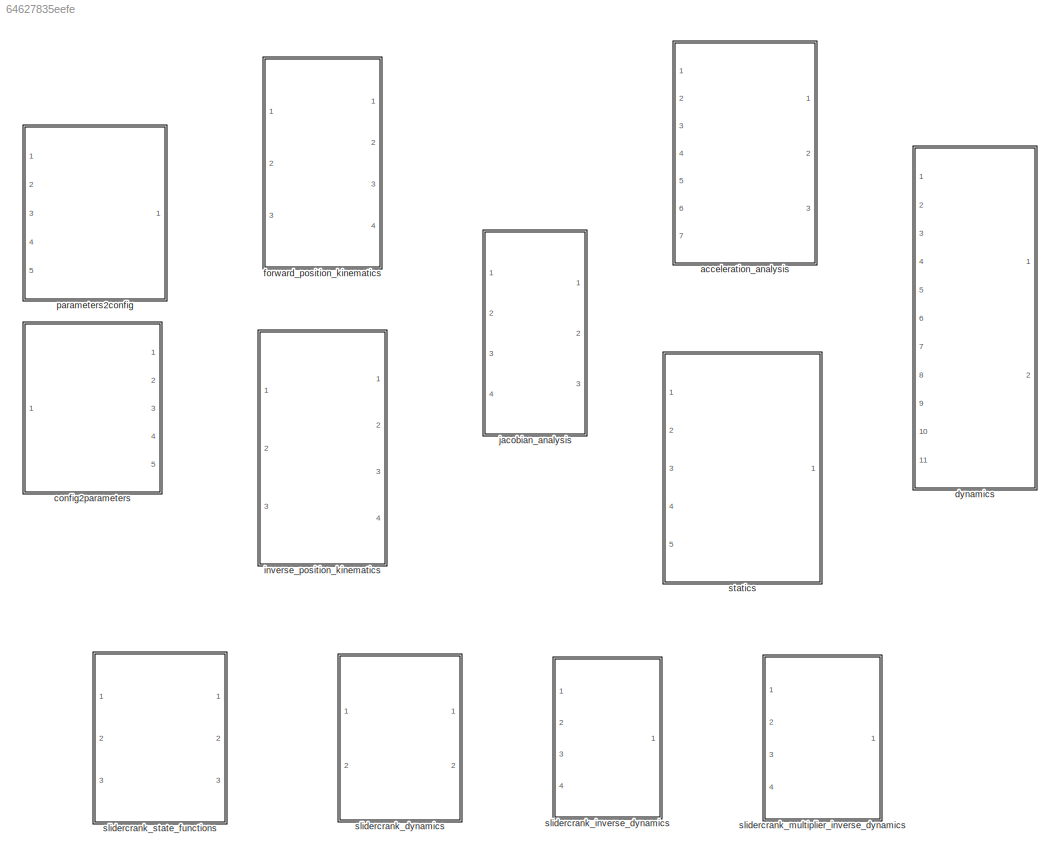
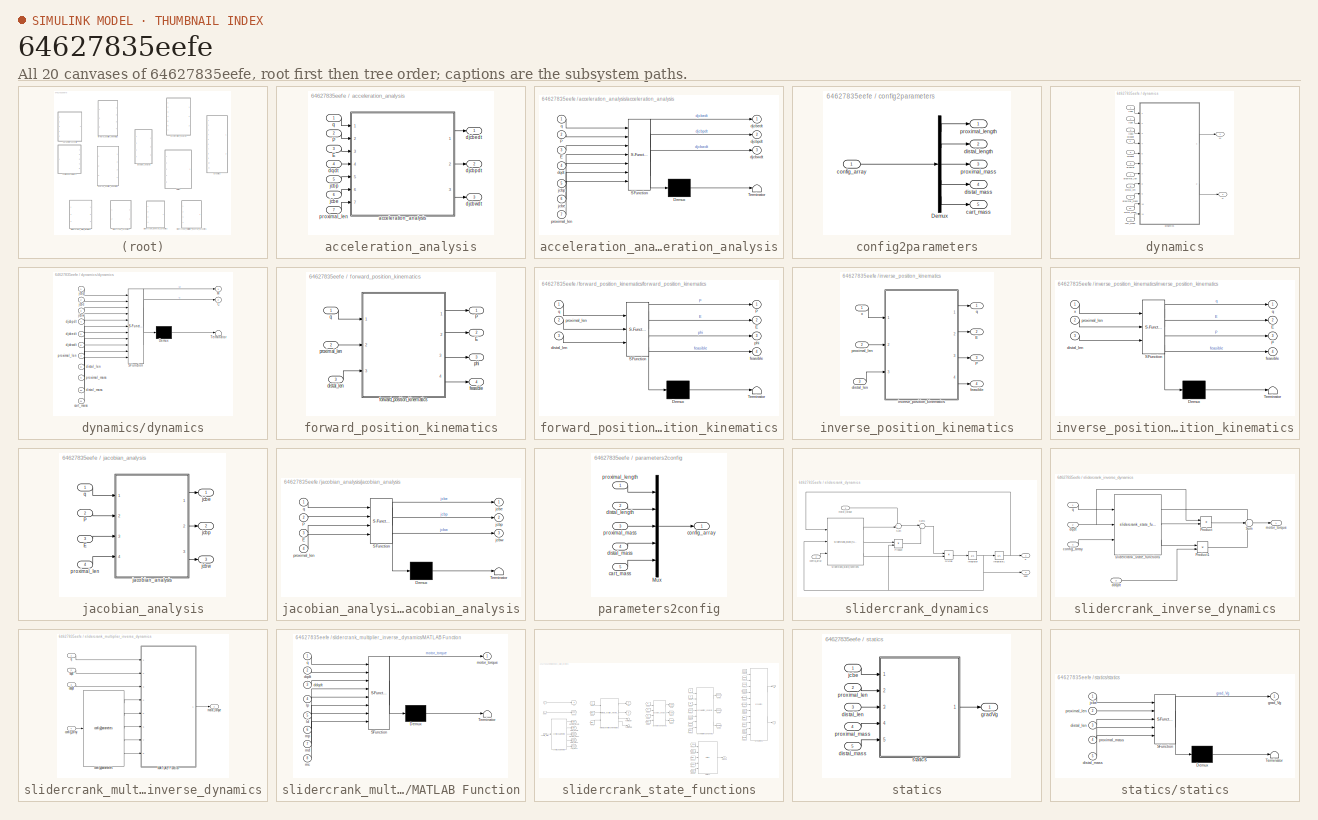
[diagram: thumbnail index - all 20 canvases of the model, root first then tree order]
MODEL slx_64627835eefe
KIND library
CONFIG AbsTol = auto
CONFIG EnableMultiTasking = off
CONFIG FixedStep = auto
CONFIG MaxStep = auto
CONFIG MinStep = auto
CONFIG RelTol = 1e-3
CONFIG SampleTimeConstraint = Unconstrained
CONFIG Solver = VariableStepAuto
CONFIG SolverName = VariableStepAuto
CONFIG StartTime = 0.0
CONFIG StopTime = 10.0
BLOCK [SubSystem] acceleration_analysis
  Ports = [7, 3]
  RequestExecContextInheritance = off
  Variant = off
BLOCK [Inport] acceleration_analysis/E
  IconDisplay = Port number
  Port = 3
BLOCK [Inport] acceleration_analysis/P
  IconDisplay = Port number
  Port = 2
BLOCK [SubSystem] acceleration_analysis/acceleration_analysis
  ErrorFcn = Stateflow.Translate.translate
  PermitHierarchicalResolution = ExplicitOnly
  Ports = [7, 3]
  RequestExecContextInheritance = off
  SFBlockType = MATLAB Function
  TreatAsAtomicUnit = on
  Variant = off
BLOCK [Demux] acceleration_analysis/acceleration_analysis/ Demux 
  Outputs = 1
  Ports = [1, 1]
BLOCK [S-Function] acceleration_analysis/acceleration_analysis/ SFunction 
  EnableBusSupport = off
  FunctionName = sf_sfun
  PortCounts = [7 4]
  Ports = [7, 4]
  SFcnIsStateOwnerBlock = off
  SFunctionDeploymentMode = off
  Tag = Stateflow S-Function slidercrank_basic_library_v1 5
BLOCK [Terminator] acceleration_analysis/acceleration_analysis/ Terminator 
BLOCK [Inport] acceleration_analysis/acceleration_analysis/E
  IconDisplay = Port number
  Port = 3
BLOCK [Inport] acceleration_analysis/acceleration_analysis/P
  IconDisplay = Port number
  Port = 2
BLOCK [Outport] acceleration_analysis/acceleration_analysis/djcbedt
  IconDisplay = Port number
BLOCK [Outport] acceleration_analysis/acceleration_analysis/djcbpdt
  IconDisplay = Port number
  Port = 2
BLOCK [Outport] acceleration_analysis/acceleration_analysis/djcbwdt
  IconDisplay = Port number
  Port = 3
BLOCK [Inport] acceleration_analysis/acceleration_analysis/dqdt
  IconDisplay = Port number
  Port = 4
BLOCK [Inport] acceleration_analysis/acceleration_analysis/jcbe
  IconDisplay = Port number
  Port = 6
BLOCK [Inport] acceleration_analysis/acceleration_analysis/jcbp
  IconDisplay = Port number
  Port = 5
BLOCK [Inport] acceleration_analysis/acceleration_analysis/proximal_len
  IconDisplay = Port number
  Port = 7
BLOCK [Inport] acceleration_analysis/acceleration_analysis/q
  IconDisplay = Port number
BLOCK [Outport] acceleration_analysis/djcbedt
  IconDisplay = Port number
BLOCK [Outport] acceleration_analysis/djcbpdt
  IconDisplay = Port number
  Port = 2
BLOCK [Outport] acceleration_analysis/djcbwdt
  IconDisplay = Port number
  Port = 3
BLOCK [Inport] acceleration_analysis/dqdt
  IconDisplay = Port number
  Port = 4
BLOCK [Inport] acceleration_analysis/jcbe
  IconDisplay = Port number
  Port = 6
BLOCK [Inport] acceleration_analysis/jcbp
  IconDisplay = Port number
  Port = 5
BLOCK [Inport] acceleration_analysis/proximal_len
  IconDisplay = Port number
  Port = 7
BLOCK [Inport] acceleration_analysis/q
  IconDisplay = Port number
BLOCK [SubSystem] config2parameters
  Ports = [1, 5]
  RequestExecContextInheritance = off
  Variant = off
BLOCK [Demux] config2parameters/Demux
  DisplayOption = bar
  Outputs = 5
  Ports = [1, 5]
BLOCK [Outport] config2parameters/cart_mass
  IconDisplay = Port number
  Port = 5
BLOCK [Inport] config2parameters/config_array
  IconDisplay = Port number
BLOCK [Outport] config2parameters/distal_length
  IconDisplay = Port number
  Port = 2
BLOCK [Outport] config2parameters/distal_mass
  IconDisplay = Port number
  Port = 4
BLOCK [Outport] config2parameters/proximal_length
  IconDisplay = Port number
BLOCK [Outport] config2parameters/proximal_mass
  IconDisplay = Port number
  Port = 3
BLOCK [SubSystem] dynamics
  Ports = [11, 2]
  RequestExecContextInheritance = off
  Variant = off
BLOCK [Outport] dynamics/C
  IconDisplay = Port number
  Port = 2
BLOCK [Outport] dynamics/M
  IconDisplay = Port number
BLOCK [Inport] dynamics/cart_mass
  IconDisplay = Port number
  Port = 11
BLOCK [Inport] dynamics/distal_len
  IconDisplay = Port number
  Port = 8
BLOCK [Inport] dynamics/distal_mass
  IconDisplay = Port number
  Port = 10
BLOCK [Inport] dynamics/djcbedt
  IconDisplay = Port number
  Port = 5
BLOCK [Inport] dynamics/djcbpdt
  IconDisplay = Port number
  Port = 4
BLOCK [Inport] dynamics/djcbwdt
  IconDisplay = Port number
  Port = 6
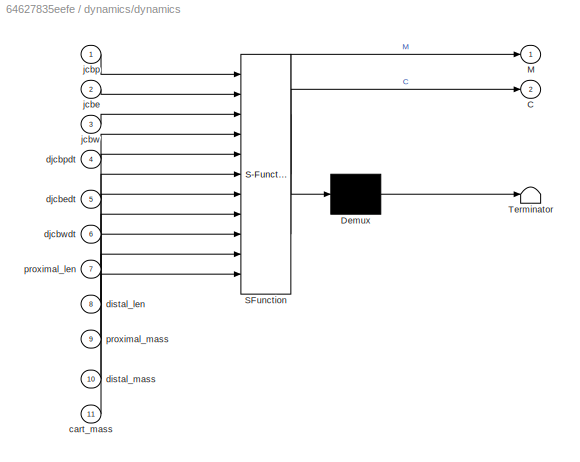
BLOCK [SubSystem] dynamics/dynamics
  ErrorFcn = Stateflow.Translate.translate
  PermitHierarchicalResolution = ExplicitOnly
  Ports = [11, 2]
  RequestExecContextInheritance = off
  SFBlockType = MATLAB Function
  TreatAsAtomicUnit = on
  Variant = off
BLOCK [Demux] dynamics/dynamics/ Demux 
  Outputs = 1
  Ports = [1, 1]
BLOCK [S-Function] dynamics/dynamics/ SFunction 
  EnableBusSupport = off
  FunctionName = sf_sfun
  PortCounts = [11 3]
  Ports = [11, 3]
  SFcnIsStateOwnerBlock = off
  SFunctionDeploymentMode = off
  Tag = Stateflow S-Function slidercrank_basic_library_v1 7
BLOCK [Terminator] dynamics/dynamics/ Terminator 
BLOCK [Outport] dynamics/dynamics/C
  IconDisplay = Port number
  Port = 2
BLOCK [Outport] dynamics/dynamics/M
  IconDisplay = Port number
BLOCK [Inport] dynamics/dynamics/cart_mass
  IconDisplay = Port number
  Port = 11
BLOCK [Inport] dynamics/dynamics/distal_len
  IconDisplay = Port number
  Port = 8
BLOCK [Inport] dynamics/dynamics/distal_mass
  IconDisplay = Port number
  Port = 10
BLOCK [Inport] dynamics/dynamics/djcbedt
  IconDisplay = Port number
  Port = 5
BLOCK [Inport] dynamics/dynamics/djcbpdt
  IconDisplay = Port number
  Port = 4
BLOCK [Inport] dynamics/dynamics/djcbwdt
  IconDisplay = Port number
  Port = 6
BLOCK [Inport] dynamics/dynamics/jcbe
  IconDisplay = Port number
  Port = 2
BLOCK [Inport] dynamics/dynamics/jcbp
  IconDisplay = Port number
BLOCK [Inport] dynamics/dynamics/jcbw
  IconDisplay = Port number
  Port = 3
BLOCK [Inport] dynamics/dynamics/proximal_len
  IconDisplay = Port number
  Port = 7
BLOCK [Inport] dynamics/dynamics/proximal_mass
  IconDisplay = Port number
  Port = 9
BLOCK [Inport] dynamics/jcbe
  IconDisplay = Port number
  Port = 2
BLOCK [Inport] dynamics/jcbp
  IconDisplay = Port number
BLOCK [Inport] dynamics/jcbw
  IconDisplay = Port number
  Port = 3
BLOCK [Inport] dynamics/proximal_len
  IconDisplay = Port number
  Port = 7
BLOCK [Inport] dynamics/proximal_mass
  IconDisplay = Port number
  Port = 9
BLOCK [SubSystem] forward_position_kinematics
  Ports = [3, 4]
  RequestExecContextInheritance = off
  Variant = off
BLOCK [Outport] forward_position_kinematics/E
  IconDisplay = Port number
  Port = 2
BLOCK [Outport] forward_position_kinematics/P
  IconDisplay = Port number
BLOCK [Inport] forward_position_kinematics/distal_len
  IconDisplay = Port number
  Port = 3
BLOCK [Outport] forward_position_kinematics/feasible
  IconDisplay = Port number
  Port = 4
BLOCK [SubSystem] forward_position_kinematics/forward_position_kinematics
  ErrorFcn = Stateflow.Translate.translate
  PermitHierarchicalResolution = ExplicitOnly
  Ports = [3, 4]
  RequestExecContextInheritance = off
  SFBlockType = MATLAB Function
  TreatAsAtomicUnit = on
  Variant = off
BLOCK [Demux] forward_position_kinematics/forward_position_kinematics/ Demux 
  Outputs = 1
  Ports = [1, 1]
BLOCK [S-Function] forward_position_kinematics/forward_position_kinematics/ SFunction 
  EnableBusSupport = off
  FunctionName = sf_sfun
  PortCounts = [3 5]
  Ports = [3, 5]
  SFcnIsStateOwnerBlock = off
  SFunctionDeploymentMode = off
  Tag = Stateflow S-Function slidercrank_basic_library_v1 12
BLOCK [Terminator] forward_position_kinematics/forward_position_kinematics/ Terminator 
BLOCK [Outport] forward_position_kinematics/forward_position_kinematics/E
  IconDisplay = Port number
  Port = 2
BLOCK [Outport] forward_position_kinematics/forward_position_kinematics/P
  IconDisplay = Port number
BLOCK [Inport] forward_position_kinematics/forward_position_kinematics/distal_len
  IconDisplay = Port number
  Port = 3
BLOCK [Outport] forward_position_kinematics/forward_position_kinematics/feasible
  IconDisplay = Port number
  Port = 4
BLOCK [Outport] forward_position_kinematics/forward_position_kinematics/phi
  IconDisplay = Port number
  Port = 3
BLOCK [Inport] forward_position_kinematics/forward_position_kinematics/proximal_len
  IconDisplay = Port number
  Port = 2
BLOCK [Inport] forward_position_kinematics/forward_position_kinematics/q
  IconDisplay = Port number
BLOCK [Outport] forward_position_kinematics/phi
  IconDisplay = Port number
  Port = 3
BLOCK [Inport] forward_position_kinematics/proximal_len
  IconDisplay = Port number
  Port = 2
BLOCK [Inport] forward_position_kinematics/q
  IconDisplay = Port number
BLOCK [SubSystem] inverse_position_kinematics
  Ports = [3, 4]
  RequestExecContextInheritance = off
  Variant = off
BLOCK [Outport] inverse_position_kinematics/E
  IconDisplay = Port number
  Port = 2
BLOCK [Outport] inverse_position_kinematics/P
  IconDisplay = Port number
  Port = 3
BLOCK [Inport] inverse_position_kinematics/distal_len
  IconDisplay = Port number
  Port = 3
BLOCK [Outport] inverse_position_kinematics/feasible
  IconDisplay = Port number
  Port = 4
BLOCK [SubSystem] inverse_position_kinematics/inverse_position_kinematics
  ErrorFcn = Stateflow.Translate.translate
  PermitHierarchicalResolution = ExplicitOnly
  Ports = [3, 4]
  RequestExecContextInheritance = off
  SFBlockType = MATLAB Function
  TreatAsAtomicUnit = on
  Variant = off
BLOCK [Demux] inverse_position_kinematics/inverse_position_kinematics/ Demux 
  Outputs = 1
  Ports = [1, 1]
BLOCK [S-Function] inverse_position_kinematics/inverse_position_kinematics/ SFunction 
  EnableBusSupport = off
  FunctionName = sf_sfun
  PortCounts = [3 5]
  Ports = [3, 5]
  SFcnIsStateOwnerBlock = off
  SFunctionDeploymentMode = off
  Tag = Stateflow S-Function slidercrank_basic_library_v1 1
BLOCK [Terminator] inverse_position_kinematics/inverse_position_kinematics/ Terminator 
BLOCK [Outport] inverse_position_kinematics/inverse_position_kinematics/E
  IconDisplay = Port number
  Port = 2
BLOCK [Outport] inverse_position_kinematics/inverse_position_kinematics/P
  IconDisplay = Port number
  Port = 3
BLOCK [Inport] inverse_position_kinematics/inverse_position_kinematics/distal_len
  IconDisplay = Port number
  Port = 3
BLOCK [Outport] inverse_position_kinematics/inverse_position_kinematics/feasible
  IconDisplay = Port number
  Port = 4
BLOCK [Inport] inverse_position_kinematics/inverse_position_kinematics/proximal_len
  IconDisplay = Port number
  Port = 2
BLOCK [Outport] inverse_position_kinematics/inverse_position_kinematics/q
  IconDisplay = Port number
BLOCK [Inport] inverse_position_kinematics/inverse_position_kinematics/x
  IconDisplay = Port number
BLOCK [Inport] inverse_position_kinematics/proximal_len
  IconDisplay = Port number
  Port = 2
BLOCK [Outport] inverse_position_kinematics/q
  IconDisplay = Port number
BLOCK [Inport] inverse_position_kinematics/x
  IconDisplay = Port number
BLOCK [SubSystem] jacobian_analysis
  Ports = [4, 3]
  RequestExecContextInheritance = off
  Variant = off
BLOCK [Inport] jacobian_analysis/E
  IconDisplay = Port number
  Port = 3
BLOCK [Inport] jacobian_analysis/P
  IconDisplay = Port number
  Port = 2
BLOCK [SubSystem] jacobian_analysis/jacobian_analysis
  ErrorFcn = Stateflow.Translate.translate
  PermitHierarchicalResolution = ExplicitOnly
  Ports = [4, 3]
  RequestExecContextInheritance = off
  SFBlockType = MATLAB Function
  TreatAsAtomicUnit = on
  Variant = off
BLOCK [Demux] jacobian_analysis/jacobian_analysis/ Demux 
  Outputs = 1
  Ports = [1, 1]
BLOCK [S-Function] jacobian_analysis/jacobian_analysis/ SFunction 
  EnableBusSupport = off
  FunctionName = sf_sfun
  PortCounts = [4 4]
  Ports = [4, 4]
  SFcnIsStateOwnerBlock = off
  SFunctionDeploymentMode = off
  Tag = Stateflow S-Function slidercrank_basic_library_v1 3
BLOCK [Terminator] jacobian_analysis/jacobian_analysis/ Terminator 
BLOCK [Inport] jacobian_analysis/jacobian_analysis/E
  IconDisplay = Port number
  Port = 3
BLOCK [Inport] jacobian_analysis/jacobian_analysis/P
  IconDisplay = Port number
  Port = 2
BLOCK [Outport] jacobian_analysis/jacobian_analysis/jcbe
  IconDisplay = Port number
BLOCK [Outport] jacobian_analysis/jacobian_analysis/jcbp
  IconDisplay = Port number
  Port = 2
BLOCK [Outport] jacobian_analysis/jacobian_analysis/jcbw
  IconDisplay = Port number
  Port = 3
BLOCK [Inport] jacobian_analysis/jacobian_analysis/proximal_len
  IconDisplay = Port number
  Port = 4
BLOCK [Inport] jacobian_analysis/jacobian_analysis/q
  IconDisplay = Port number
BLOCK [Outport] jacobian_analysis/jcbe
  IconDisplay = Port number
BLOCK [Outport] jacobian_analysis/jcbp
  IconDisplay = Port number
  Port = 2
BLOCK [Outport] jacobian_analysis/jcbw
  IconDisplay = Port number
  Port = 3
BLOCK [Inport] jacobian_analysis/proximal_len
  IconDisplay = Port number
  Port = 4
BLOCK [Inport] jacobian_analysis/q
  IconDisplay = Port number
BLOCK [SubSystem] parameters2config
  Ports = [5, 1]
  RequestExecContextInheritance = off
  Variant = off
BLOCK [Mux] parameters2config/Mux
  DisplayOption = bar
  Inputs = 5
  Ports = [5, 1]
BLOCK [Inport] parameters2config/cart_mass
  IconDisplay = Port number
  Port = 5
BLOCK [Outport] parameters2config/config_array
  IconDisplay = Port number
BLOCK [Inport] parameters2config/distal_length
  IconDisplay = Port number
  Port = 2
BLOCK [Inport] parameters2config/distal_mass
  IconDisplay = Port number
  Port = 4
BLOCK [Inport] parameters2config/proximal_length
  IconDisplay = Port number
BLOCK [Inport] parameters2config/proximal_mass
  IconDisplay = Port number
  Port = 3
BLOCK [SubSystem] slidercrank_dynamics
  Ports = [2, 2]
  RequestExecContextInheritance = off
  Variant = off
BLOCK [Product] slidercrank_dynamics/Divide
  InputSameDT = off
  Inputs = */
  OutDataTypeStr = Inherit: Inherit via internal rule
  Ports = [2, 1]
  RndMeth = Floor
  SaturateOnIntegerOverflow = off
BLOCK [Integrator] slidercrank_dynamics/Integrator
  Ports = [1, 1]
BLOCK [Integrator] slidercrank_dynamics/Integrator1
  Ports = [1, 1]
BLOCK [Product] slidercrank_dynamics/Product
  InputSameDT = off
  OutDataTypeStr = Inherit: Inherit via internal rule
  Ports = [2, 1]
  RndMeth = Floor
  SaturateOnIntegerOverflow = off
BLOCK [Sum] slidercrank_dynamics/Sum
  IconShape = round
  InputSameDT = off
  Inputs = ++|
  OutDataTypeStr = Inherit: Inherit via internal rule
  Ports = [2, 1]
  SaturateOnIntegerOverflow = off
BLOCK [Sum] slidercrank_dynamics/Sum1
  IconShape = round
  InputSameDT = off
  Inputs = |+-
  OutDataTypeStr = Inherit: Inherit via internal rule
  Ports = [2, 1]
  SaturateOnIntegerOverflow = off
BLOCK [Inport] slidercrank_dynamics/config_array
  IconDisplay = Port number
  Port = 2
BLOCK [Outport] slidercrank_dynamics/dqdt
  IconDisplay = Port number
  Port = 2
BLOCK [Inport] slidercrank_dynamics/motor_torque
  IconDisplay = Port number
BLOCK [Outport] slidercrank_dynamics/q
  IconDisplay = Port number
BLOCK [Reference] slidercrank_dynamics/slidercrank_state_functions  REF=slidercrank_basic_library_v1/slidercrank_state_functions  (lib defined in slx_64627835eefe)
  Ports = [3, 3]
  SourceBlock = slidercrank_basic_library_v1/slidercrank_state_functions
  SourceType = SubSystem
BLOCK [SubSystem] slidercrank_inverse_dynamics
  Ports = [4, 1]
  RequestExecContextInheritance = off
  Variant = off
BLOCK [Product] slidercrank_inverse_dynamics/Product
  InputSameDT = off
  OutDataTypeStr = Inherit: Inherit via internal rule
  Ports = [2, 1]
  RndMeth = Floor
  SaturateOnIntegerOverflow = off
BLOCK [Product] slidercrank_inverse_dynamics/Product1
  InputSameDT = off
  OutDataTypeStr = Inherit: Inherit via internal rule
  Ports = [2, 1]
  RndMeth = Floor
  SaturateOnIntegerOverflow = off
BLOCK [Sum] slidercrank_inverse_dynamics/Sum
  IconShape = round
  InputSameDT = off
  Inputs = -++
  OutDataTypeStr = Inherit: Inherit via internal rule
  Ports = [3, 1]
  SaturateOnIntegerOverflow = off
BLOCK [Inport] slidercrank_inverse_dynamics/config_array
  IconDisplay = Port number
  Port = 4
BLOCK [Inport] slidercrank_inverse_dynamics/ddqdt
  IconDisplay = Port number
  Port = 3
BLOCK [Inport] slidercrank_inverse_dynamics/dqdt
  IconDisplay = Port number
  Port = 2
BLOCK [Outport] slidercrank_inverse_dynamics/motor_torque
  IconDisplay = Port number
BLOCK [Inport] slidercrank_inverse_dynamics/q
  IconDisplay = Port number
BLOCK [Reference] slidercrank_inverse_dynamics/slidercrank_state_functions  REF=slidercrank_basic_library_v1/slidercrank_state_functions  (lib defined in slx_64627835eefe)
  Ports = [3, 3]
  SourceBlock = slidercrank_basic_library_v1/slidercrank_state_functions
  SourceType = SubSystem
BLOCK [SubSystem] slidercrank_multiplier_inverse_dynamics
  Ports = [4, 1]
  RequestExecContextInheritance = off
  Variant = off
BLOCK [SubSystem] slidercrank_multiplier_inverse_dynamics/MATLAB Function
  ErrorFcn = Stateflow.Translate.translate
  PermitHierarchicalResolution = ExplicitOnly
  Ports = [8, 1]
  RequestExecContextInheritance = off
  SFBlockType = MATLAB Function
  TreatAsAtomicUnit = on
  Variant = off
BLOCK [Demux] slidercrank_multiplier_inverse_dynamics/MATLAB Function/ Demux 
  Outputs = 1
  Ports = [1, 1]
BLOCK [S-Function] slidercrank_multiplier_inverse_dynamics/MATLAB Function/ SFunction 
  EnableBusSupport = off
  FunctionName = sf_sfun
  PortCounts = [8 2]
  Ports = [8, 2]
  SFcnIsStateOwnerBlock = off
  SFunctionDeploymentMode = off
  Tag = Stateflow S-Function slidercrank_basic_library_v1 2
BLOCK [Terminator] slidercrank_multiplier_inverse_dynamics/MATLAB Function/ Terminator 
BLOCK [Inport] slidercrank_multiplier_inverse_dynamics/MATLAB Function/ddqdt
  IconDisplay = Port number
  Port = 3
BLOCK [Inport] slidercrank_multiplier_inverse_dynamics/MATLAB Function/dqdt
  IconDisplay = Port number
  Port = 2
BLOCK [Inport] slidercrank_multiplier_inverse_dynamics/MATLAB Function/ld
  IconDisplay = Port number
  Port = 5
BLOCK [Inport] slidercrank_multiplier_inverse_dynamics/MATLAB Function/lp
  IconDisplay = Port number
  Port = 4
BLOCK [Inport] slidercrank_multiplier_inverse_dynamics/MATLAB Function/mc
  IconDisplay = Port number
  Port = 8
BLOCK [Inport] slidercrank_multiplier_inverse_dynamics/MATLAB Function/md
  IconDisplay = Port number
  Port = 7
BLOCK [Outport] slidercrank_multiplier_inverse_dynamics/MATLAB Function/motor_torque
  IconDisplay = Port number
BLOCK [Inport] slidercrank_multiplier_inverse_dynamics/MATLAB Function/mp
  IconDisplay = Port number
  Port = 6
BLOCK [Inport] slidercrank_multiplier_inverse_dynamics/MATLAB Function/q
  IconDisplay = Port number
BLOCK [Reference] slidercrank_multiplier_inverse_dynamics/config2parameters  REF=slidercrank_basic_library_v1/config2parameters  (lib defined in slx_64627835eefe)
  Ports = [1, 5]
  SourceBlock = slidercrank_basic_library_v1/config2parameters
  SourceType = SubSystem
BLOCK [Inport] slidercrank_multiplier_inverse_dynamics/config_array
  IconDisplay = Port number
  Port = 4
BLOCK [Inport] slidercrank_multiplier_inverse_dynamics/ddqdt
  IconDisplay = Port number
  Port = 3
BLOCK [Inport] slidercrank_multiplier_inverse_dynamics/dqdt
  IconDisplay = Port number
  Port = 2
BLOCK [Outport] slidercrank_multiplier_inverse_dynamics/motor_torque
  IconDisplay = Port number
BLOCK [Inport] slidercrank_multiplier_inverse_dynamics/q
  IconDisplay = Port number
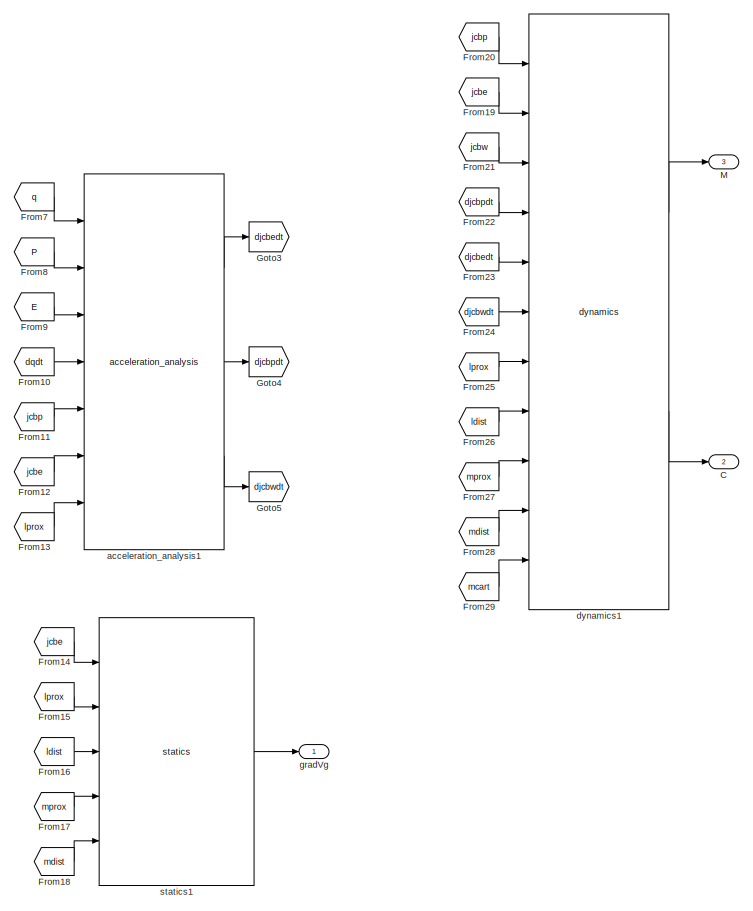
[diagram: slidercrank_state_functions - part 1/2, right side, full height]
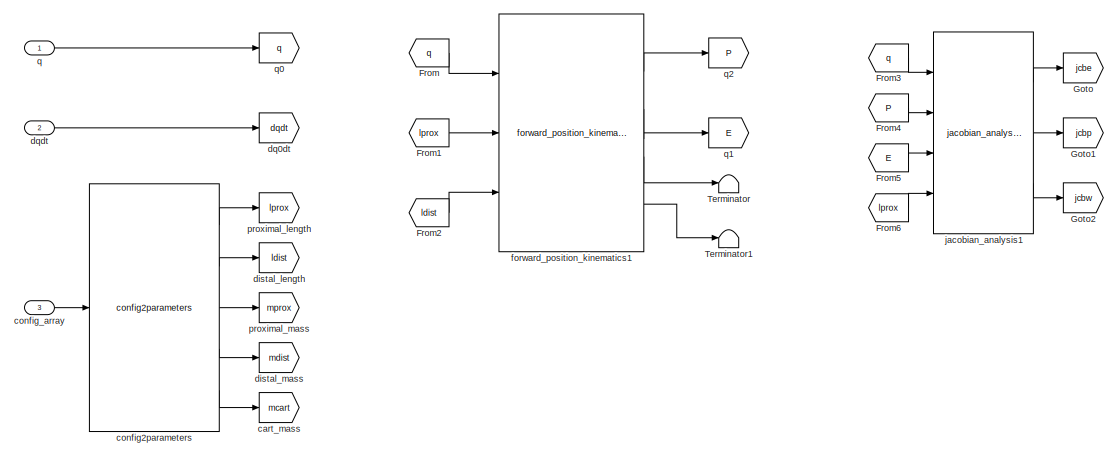
[diagram: slidercrank_state_functions - part 2/2, middle left region]
BLOCK [SubSystem] slidercrank_state_functions
  Ports = [3, 3]
  RequestExecContextInheritance = off
  Variant = off
BLOCK [Outport] slidercrank_state_functions/C
  IconDisplay = Port number
  Port = 2
BLOCK [From] slidercrank_state_functions/From
  GotoTag = q
BLOCK [From] slidercrank_state_functions/From1
  GotoTag = lprox
BLOCK [From] slidercrank_state_functions/From10
  GotoTag = dqdt
BLOCK [From] slidercrank_state_functions/From11
  GotoTag = jcbp
BLOCK [From] slidercrank_state_functions/From12
  GotoTag = jcbe
BLOCK [From] slidercrank_state_functions/From13
  GotoTag = lprox
BLOCK [From] slidercrank_state_functions/From14
  GotoTag = jcbe
BLOCK [From] slidercrank_state_functions/From15
  GotoTag = lprox
BLOCK [From] slidercrank_state_functions/From16
  GotoTag = ldist
BLOCK [From] slidercrank_state_functions/From17
  GotoTag = mprox
BLOCK [From] slidercrank_state_functions/From18
  GotoTag = mdist
BLOCK [From] slidercrank_state_functions/From19
  GotoTag = jcbe
BLOCK [From] slidercrank_state_functions/From2
  GotoTag = ldist
BLOCK [From] slidercrank_state_functions/From20
  GotoTag = jcbp
BLOCK [From] slidercrank_state_functions/From21
  GotoTag = jcbw
BLOCK [From] slidercrank_state_functions/From22
  GotoTag = djcbpdt
BLOCK [From] slidercrank_state_functions/From23
  GotoTag = djcbedt
BLOCK [From] slidercrank_state_functions/From24
  GotoTag = djcbwdt
BLOCK [From] slidercrank_state_functions/From25
  GotoTag = lprox
BLOCK [From] slidercrank_state_functions/From26
  GotoTag = ldist
BLOCK [From] slidercrank_state_functions/From27
  GotoTag = mprox
BLOCK [From] slidercrank_state_functions/From28
  GotoTag = mdist
BLOCK [From] slidercrank_state_functions/From29
  GotoTag = mcart
BLOCK [From] slidercrank_state_functions/From3
  GotoTag = q
BLOCK [From] slidercrank_state_functions/From4
  GotoTag = P
BLOCK [From] slidercrank_state_functions/From5
  GotoTag = E
BLOCK [From] slidercrank_state_functions/From6
  GotoTag = lprox
BLOCK [From] slidercrank_state_functions/From7
  GotoTag = q
BLOCK [From] slidercrank_state_functions/From8
  GotoTag = P
BLOCK [From] slidercrank_state_functions/From9
  GotoTag = E
BLOCK [Goto] slidercrank_state_functions/Goto
  GotoTag = jcbe
BLOCK [Goto] slidercrank_state_functions/Goto1
  GotoTag = jcbp
BLOCK [Goto] slidercrank_state_functions/Goto2
  GotoTag = jcbw
BLOCK [Goto] slidercrank_state_functions/Goto3
  GotoTag = djcbedt
BLOCK [Goto] slidercrank_state_functions/Goto4
  GotoTag = djcbpdt
BLOCK [Goto] slidercrank_state_functions/Goto5
  GotoTag = djcbwdt
BLOCK [Outport] slidercrank_state_functions/M
  IconDisplay = Port number
  Port = 3
BLOCK [Terminator] slidercrank_state_functions/Terminator
BLOCK [Terminator] slidercrank_state_functions/Terminator1
BLOCK [Reference] slidercrank_state_functions/acceleration_analysis1  REF=slidercrank_basic_library_v1/acceleration_analysis  (lib defined in slx_64627835eefe)
  Ports = [7, 3]
  SourceBlock = slidercrank_basic_library_v1/acceleration_analysis
  SourceType = SubSystem
BLOCK [Goto] slidercrank_state_functions/cart_mass
  GotoTag = mcart
BLOCK [Reference] slidercrank_state_functions/config2parameters  REF=slidercrank_basic_library_v1/config2parameters  (lib defined in slx_64627835eefe)
  Ports = [1, 5]
  SourceBlock = slidercrank_basic_library_v1/config2parameters
  SourceType = SubSystem
BLOCK [Inport] slidercrank_state_functions/config_array
  IconDisplay = Port number
  Port = 3
BLOCK [Goto] slidercrank_state_functions/distal_length
  GotoTag = ldist
BLOCK [Goto] slidercrank_state_functions/distal_mass
  GotoTag = mdist
BLOCK [Goto] slidercrank_state_functions/dq0dt
  GotoTag = dqdt
BLOCK [Inport] slidercrank_state_functions/dqdt
  IconDisplay = Port number
  Port = 2
BLOCK [Reference] slidercrank_state_functions/dynamics1  REF=slidercrank_basic_library_v1/dynamics  (lib defined in slx_64627835eefe)
  Ports = [11, 2]
  SourceBlock = slidercrank_basic_library_v1/dynamics
  SourceType = SubSystem
BLOCK [Reference] slidercrank_state_functions/forward_position_kinematics1  REF=slidercrank_basic_library_v1/forward_position_kinematics  (lib defined in slx_64627835eefe)
  Ports = [3, 4]
  SourceBlock = slidercrank_basic_library_v1/forward_position_kinematics
  SourceType = SubSystem
BLOCK [Outport] slidercrank_state_functions/gradVg
  IconDisplay = Port number
BLOCK [Reference] slidercrank_state_functions/jacobian_analysis1  REF=slidercrank_basic_library_v1/jacobian_analysis  (lib defined in slx_64627835eefe)
  Ports = [4, 3]
  SourceBlock = slidercrank_basic_library_v1/jacobian_analysis
  SourceType = SubSystem
BLOCK [Goto] slidercrank_state_functions/proximal_length
  GotoTag = lprox
BLOCK [Goto] slidercrank_state_functions/proximal_mass
  GotoTag = mprox
BLOCK [Inport] slidercrank_state_functions/q
  IconDisplay = Port number
BLOCK [Goto] slidercrank_state_functions/q0
  GotoTag = q
BLOCK [Goto] slidercrank_state_functions/q1
  GotoTag = E
BLOCK [Goto] slidercrank_state_functions/q2
  GotoTag = P
BLOCK [Reference] slidercrank_state_functions/statics1  REF=slidercrank_basic_library_v1/statics  (lib defined in slx_64627835eefe)
  Ports = [5, 1]
  SourceBlock = slidercrank_basic_library_v1/statics
  SourceType = SubSystem
BLOCK [SubSystem] statics
  Ports = [5, 1]
  RequestExecContextInheritance = off
  Variant = off
BLOCK [Inport] statics/distal_len
  IconDisplay = Port number
  Port = 3
BLOCK [Inport] statics/distal_mass
  IconDisplay = Port number
  Port = 5
BLOCK [Outport] statics/gradVg
  IconDisplay = Port number
BLOCK [Inport] statics/jcbe
  IconDisplay = Port number
BLOCK [Inport] statics/proximal_len
  IconDisplay = Port number
  Port = 2
BLOCK [Inport] statics/proximal_mass
  IconDisplay = Port number
  Port = 4
BLOCK [SubSystem] statics/statics
  ErrorFcn = Stateflow.Translate.translate
  PermitHierarchicalResolution = ExplicitOnly
  Ports = [5, 1]
  RequestExecContextInheritance = off
  SFBlockType = MATLAB Function
  TreatAsAtomicUnit = on
  Variant = off
BLOCK [Demux] statics/statics/ Demux 
  Outputs = 1
  Ports = [1, 1]
BLOCK [S-Function] statics/statics/ SFunction 
  EnableBusSupport = off
  FunctionName = sf_sfun
  PortCounts = [5 2]
  Ports = [5, 2]
  SFcnIsStateOwnerBlock = off
  SFunctionDeploymentMode = off
  Tag = Stateflow S-Function slidercrank_basic_library_v1 6
BLOCK [Terminator] statics/statics/ Terminator 
BLOCK [Inport] statics/statics/distal_len
  IconDisplay = Port number
  Port = 3
BLOCK [Inport] statics/statics/distal_mass
  IconDisplay = Port number
  Port = 5
BLOCK [Outport] statics/statics/grad_Vg
  IconDisplay = Port number
BLOCK [Inport] statics/statics/jcbe
  IconDisplay = Port number
BLOCK [Inport] statics/statics/proximal_len
  IconDisplay = Port number
  Port = 2
BLOCK [Inport] statics/statics/proximal_mass
  IconDisplay = Port number
  Port = 4
LINE acceleration_analysis/E:1 -> acceleration_analysis/acceleration_analysis:3
LINE acceleration_analysis/P:1 -> acceleration_analysis/acceleration_analysis:2
LINE acceleration_analysis/acceleration_analysis:1 -> acceleration_analysis/djcbedt:1
LINE acceleration_analysis/acceleration_analysis:2 -> acceleration_analysis/djcbpdt:1
LINE acceleration_analysis/acceleration_analysis:3 -> acceleration_analysis/djcbwdt:1
LINE acceleration_analysis/dqdt:1 -> acceleration_analysis/acceleration_analysis:4
LINE acceleration_analysis/jcbe:1 -> acceleration_analysis/acceleration_analysis:6
LINE acceleration_analysis/jcbp:1 -> acceleration_analysis/acceleration_analysis:5
LINE acceleration_analysis/proximal_len:1 -> acceleration_analysis/acceleration_analysis:7
LINE acceleration_analysis/q:1 -> acceleration_analysis/acceleration_analysis:1
LINE config2parameters/Demux:1 -> config2parameters/proximal_length:1
LINE config2parameters/Demux:2 -> config2parameters/distal_length:1
LINE config2parameters/Demux:3 -> config2parameters/proximal_mass:1
LINE config2parameters/Demux:4 -> config2parameters/distal_mass:1
LINE config2parameters/Demux:5 -> config2parameters/cart_mass:1
LINE config2parameters/config_array:1 -> config2parameters/Demux:1
LINE dynamics/cart_mass:1 -> dynamics/dynamics:11
LINE dynamics/distal_len:1 -> dynamics/dynamics:8
LINE dynamics/distal_mass:1 -> dynamics/dynamics:10
LINE dynamics/djcbedt:1 -> dynamics/dynamics:5
LINE dynamics/djcbpdt:1 -> dynamics/dynamics:4
LINE dynamics/djcbwdt:1 -> dynamics/dynamics:6
LINE dynamics/dynamics:1 -> dynamics/M:1
LINE dynamics/dynamics:2 -> dynamics/C:1
LINE dynamics/jcbe:1 -> dynamics/dynamics:2
LINE dynamics/jcbp:1 -> dynamics/dynamics:1
LINE dynamics/jcbw:1 -> dynamics/dynamics:3
LINE dynamics/proximal_len:1 -> dynamics/dynamics:7
LINE dynamics/proximal_mass:1 -> dynamics/dynamics:9
LINE forward_position_kinematics/distal_len:1 -> forward_position_kinematics/forward_position_kinematics:3
LINE forward_position_kinematics/forward_position_kinematics:1 -> forward_position_kinematics/P:1
LINE forward_position_kinematics/forward_position_kinematics:2 -> forward_position_kinematics/E:1
LINE forward_position_kinematics/forward_position_kinematics:3 -> forward_position_kinematics/phi:1
LINE forward_position_kinematics/forward_position_kinematics:4 -> forward_position_kinematics/feasible:1
LINE forward_position_kinematics/proximal_len:1 -> forward_position_kinematics/forward_position_kinematics:2
LINE forward_position_kinematics/q:1 -> forward_position_kinematics/forward_position_kinematics:1
LINE inverse_position_kinematics/distal_len:1 -> inverse_position_kinematics/inverse_position_kinematics:3
LINE inverse_position_kinematics/inverse_position_kinematics:1 -> inverse_position_kinematics/q:1
LINE inverse_position_kinematics/inverse_position_kinematics:2 -> inverse_position_kinematics/E:1
LINE inverse_position_kinematics/inverse_position_kinematics:3 -> inverse_position_kinematics/P:1
LINE inverse_position_kinematics/inverse_position_kinematics:4 -> inverse_position_kinematics/feasible:1
LINE inverse_position_kinematics/proximal_len:1 -> inverse_position_kinematics/inverse_position_kinematics:2
LINE inverse_position_kinematics/x:1 -> inverse_position_kinematics/inverse_position_kinematics:1
LINE jacobian_analysis/E:1 -> jacobian_analysis/jacobian_analysis:3
LINE jacobian_analysis/P:1 -> jacobian_analysis/jacobian_analysis:2
LINE jacobian_analysis/jacobian_analysis:1 -> jacobian_analysis/jcbe:1
LINE jacobian_analysis/jacobian_analysis:2 -> jacobian_analysis/jcbp:1
LINE jacobian_analysis/jacobian_analysis:3 -> jacobian_analysis/jcbw:1
LINE jacobian_analysis/proximal_len:1 -> jacobian_analysis/jacobian_analysis:4
LINE jacobian_analysis/q:1 -> jacobian_analysis/jacobian_analysis:1
LINE parameters2config/Mux:1 -> parameters2config/config_array:1
LINE parameters2config/cart_mass:1 -> parameters2config/Mux:5
LINE parameters2config/distal_length:1 -> parameters2config/Mux:2
LINE parameters2config/distal_mass:1 -> parameters2config/Mux:4
LINE parameters2config/proximal_length:1 -> parameters2config/Mux:1
LINE parameters2config/proximal_mass:1 -> parameters2config/Mux:3
LINE slidercrank_dynamics/Divide:1 -> slidercrank_dynamics/Integrator:1
NET slidercrank_dynamics/Integrator1:1 -> slidercrank_dynamics/q:1, slidercrank_dynamics/slidercrank_state_functions:1
NET slidercrank_dynamics/Integrator:1 -> slidercrank_dynamics/Integrator1:1, slidercrank_dynamics/Product:2, slidercrank_dynamics/dqdt:1, slidercrank_dynamics/slidercrank_state_functions:2
LINE slidercrank_dynamics/Product:1 -> slidercrank_dynamics/Sum1:2
LINE slidercrank_dynamics/Sum1:1 -> slidercrank_dynamics/Divide:1
LINE slidercrank_dynamics/Sum:1 -> slidercrank_dynamics/Sum1:1
LINE slidercrank_dynamics/config_array:1 -> slidercrank_dynamics/slidercrank_state_functions:3
LINE slidercrank_dynamics/motor_torque:1 -> slidercrank_dynamics/Sum:1
LINE slidercrank_dynamics/slidercrank_state_functions:1 -> slidercrank_dynamics/Sum:2
LINE slidercrank_dynamics/slidercrank_state_functions:2 -> slidercrank_dynamics/Product:1
LINE slidercrank_dynamics/slidercrank_state_functions:3 -> slidercrank_dynamics/Divide:2
LINE slidercrank_inverse_dynamics/Product1:1 -> slidercrank_inverse_dynamics/Sum:3
LINE slidercrank_inverse_dynamics/Product:1 -> slidercrank_inverse_dynamics/Sum:2
LINE slidercrank_inverse_dynamics/Sum:1 -> slidercrank_inverse_dynamics/motor_torque:1
LINE slidercrank_inverse_dynamics/config_array:1 -> slidercrank_inverse_dynamics/slidercrank_state_functions:3
LINE slidercrank_inverse_dynamics/ddqdt:1 -> slidercrank_inverse_dynamics/Product1:2
NET slidercrank_inverse_dynamics/dqdt:1 -> slidercrank_inverse_dynamics/Product:1, slidercrank_inverse_dynamics/slidercrank_state_functions:2
LINE slidercrank_inverse_dynamics/q:1 -> slidercrank_inverse_dynamics/slidercrank_state_functions:1
LINE slidercrank_inverse_dynamics/slidercrank_state_functions:1 -> slidercrank_inverse_dynamics/Sum:1
LINE slidercrank_inverse_dynamics/slidercrank_state_functions:2 -> slidercrank_inverse_dynamics/Product:2
LINE slidercrank_inverse_dynamics/slidercrank_state_functions:3 -> slidercrank_inverse_dynamics/Product1:1
LINE slidercrank_multiplier_inverse_dynamics/MATLAB Function:1 -> slidercrank_multiplier_inverse_dynamics/motor_torque:1
LINE slidercrank_multiplier_inverse_dynamics/config2parameters:1 -> slidercrank_multiplier_inverse_dynamics/MATLAB Function:4
LINE slidercrank_multiplier_inverse_dynamics/config2parameters:2 -> slidercrank_multiplier_inverse_dynamics/MATLAB Function:5
LINE slidercrank_multiplier_inverse_dynamics/config2parameters:3 -> slidercrank_multiplier_inverse_dynamics/MATLAB Function:6
LINE slidercrank_multiplier_inverse_dynamics/config2parameters:4 -> slidercrank_multiplier_inverse_dynamics/MATLAB Function:7
LINE slidercrank_multiplier_inverse_dynamics/config2parameters:5 -> slidercrank_multiplier_inverse_dynamics/MATLAB Function:8
LINE slidercrank_multiplier_inverse_dynamics/config_array:1 -> slidercrank_multiplier_inverse_dynamics/config2parameters:1
LINE slidercrank_multiplier_inverse_dynamics/ddqdt:1 -> slidercrank_multiplier_inverse_dynamics/MATLAB Function:3
LINE slidercrank_multiplier_inverse_dynamics/dqdt:1 -> slidercrank_multiplier_inverse_dynamics/MATLAB Function:2
LINE slidercrank_multiplier_inverse_dynamics/q:1 -> slidercrank_multiplier_inverse_dynamics/MATLAB Function:1
LINE slidercrank_state_functions/From10:1 -> slidercrank_state_functions/acceleration_analysis1:4
LINE slidercrank_state_functions/From11:1 -> slidercrank_state_functions/acceleration_analysis1:5
LINE slidercrank_state_functions/From12:1 -> slidercrank_state_functions/acceleration_analysis1:6
LINE slidercrank_state_functions/From13:1 -> slidercrank_state_functions/acceleration_analysis1:7
LINE slidercrank_state_functions/From14:1 -> slidercrank_state_functions/statics1:1
LINE slidercrank_state_functions/From15:1 -> slidercrank_state_functions/statics1:2
LINE slidercrank_state_functions/From16:1 -> slidercrank_state_functions/statics1:3
LINE slidercrank_state_functions/From17:1 -> slidercrank_state_functions/statics1:4
LINE slidercrank_state_functions/From18:1 -> slidercrank_state_functions/statics1:5
LINE slidercrank_state_functions/From19:1 -> slidercrank_state_functions/dynamics1:2
LINE slidercrank_state_functions/From1:1 -> slidercrank_state_functions/forward_position_kinematics1:2
LINE slidercrank_state_functions/From20:1 -> slidercrank_state_functions/dynamics1:1
LINE slidercrank_state_functions/From21:1 -> slidercrank_state_functions/dynamics1:3
LINE slidercrank_state_functions/From22:1 -> slidercrank_state_functions/dynamics1:4
LINE slidercrank_state_functions/From23:1 -> slidercrank_state_functions/dynamics1:5
LINE slidercrank_state_functions/From24:1 -> slidercrank_state_functions/dynamics1:6
LINE slidercrank_state_functions/From25:1 -> slidercrank_state_functions/dynamics1:7
LINE slidercrank_state_functions/From26:1 -> slidercrank_state_functions/dynamics1:8
LINE slidercrank_state_functions/From27:1 -> slidercrank_state_functions/dynamics1:9
LINE slidercrank_state_functions/From28:1 -> slidercrank_state_functions/dynamics1:10
LINE slidercrank_state_functions/From29:1 -> slidercrank_state_functions/dynamics1:11
LINE slidercrank_state_functions/From2:1 -> slidercrank_state_functions/forward_position_kinematics1:3
LINE slidercrank_state_functions/From3:1 -> slidercrank_state_functions/jacobian_analysis1:1
LINE slidercrank_state_functions/From4:1 -> slidercrank_state_functions/jacobian_analysis1:2
LINE slidercrank_state_functions/From5:1 -> slidercrank_state_functions/jacobian_analysis1:3
LINE slidercrank_state_functions/From6:1 -> slidercrank_state_functions/jacobian_analysis1:4
LINE slidercrank_state_functions/From7:1 -> slidercrank_state_functions/acceleration_analysis1:1
LINE slidercrank_state_functions/From8:1 -> slidercrank_state_functions/acceleration_analysis1:2
LINE slidercrank_state_functions/From9:1 -> slidercrank_state_functions/acceleration_analysis1:3
LINE slidercrank_state_functions/From:1 -> slidercrank_state_functions/forward_position_kinematics1:1
LINE slidercrank_state_functions/acceleration_analysis1:1 -> slidercrank_state_functions/Goto3:1
LINE slidercrank_state_functions/acceleration_analysis1:2 -> slidercrank_state_functions/Goto4:1
LINE slidercrank_state_functions/acceleration_analysis1:3 -> slidercrank_state_functions/Goto5:1
LINE slidercrank_state_functions/config2parameters:1 -> slidercrank_state_functions/proximal_length:1
LINE slidercrank_state_functions/config2parameters:2 -> slidercrank_state_functions/distal_length:1
LINE slidercrank_state_functions/config2parameters:3 -> slidercrank_state_functions/proximal_mass:1
LINE slidercrank_state_functions/config2parameters:4 -> slidercrank_state_functions/distal_mass:1
LINE slidercrank_state_functions/config2parameters:5 -> slidercrank_state_functions/cart_mass:1
LINE slidercrank_state_functions/config_array:1 -> slidercrank_state_functions/config2parameters:1
LINE slidercrank_state_functions/dqdt:1 -> slidercrank_state_functions/dq0dt:1
LINE slidercrank_state_functions/dynamics1:1 -> slidercrank_state_functions/M:1
LINE slidercrank_state_functions/dynamics1:2 -> slidercrank_state_functions/C:1
LINE slidercrank_state_functions/forward_position_kinematics1:1 -> slidercrank_state_functions/q2:1
LINE slidercrank_state_functions/forward_position_kinematics1:2 -> slidercrank_state_functions/q1:1
LINE slidercrank_state_functions/forward_position_kinematics1:3 -> slidercrank_state_functions/Terminator:1
LINE slidercrank_state_functions/forward_position_kinematics1:4 -> slidercrank_state_functions/Terminator1:1
LINE slidercrank_state_functions/jacobian_analysis1:1 -> slidercrank_state_functions/Goto:1
LINE slidercrank_state_functions/jacobian_analysis1:2 -> slidercrank_state_functions/Goto1:1
LINE slidercrank_state_functions/jacobian_analysis1:3 -> slidercrank_state_functions/Goto2:1
LINE slidercrank_state_functions/q:1 -> slidercrank_state_functions/q0:1
LINE slidercrank_state_functions/statics1:1 -> slidercrank_state_functions/gradVg:1
LINE statics/distal_len:1 -> statics/statics:3
LINE statics/distal_mass:1 -> statics/statics:5
LINE statics/jcbe:1 -> statics/statics:1
LINE statics/proximal_len:1 -> statics/statics:2
LINE statics/proximal_mass:1 -> statics/statics:4
LINE statics/statics:1 -> statics/gradVg:1
note: NET lines group one-source signal fan-out (src -> all destinations, sorted); 1:1 wires keep LINE
CHART inverse_position_kinematics/inverse_position_kinematics states=1 transitions=1
  STATE_LABEL 'eML_blk_kernel()'
  STATE_LABEL 'SCRIPT:\nfunction [q,E,P,feasible] = inverse_position_kinematics(x, proximal_len, distal_len)\n    q = 0;\n    P = zeros(3,1);\n    E = zeros(3,1);\n    \n    P = [x;0;0];\n    O = [0;0;0];\n    pt = zeros(2,2);\n    [pt(:,1), pt(:,2), nfound] = intersect_circles(O, proximal_len, P, distal_len);\n    if (nfound == 0)\n        P = NaN(3,1);\n        E = NaN(3,1);\n        q = NaN(1,1);\n        feasible  = false...<+172ch>'
CHART slidercrank_multiplier_inverse_dynamics/MATLAB Function states=1 transitions=1
  STATE_LABEL 'eML_blk_kernel()'
  STATE_LABEL 'SCRIPT:\nfunction motor_torque  = inverse_dynamics(q, dqdt, ddqdt, lp, ld, mp, md, mc)\n%\n    [P,E,feasible]            = forward_position_kinematics(q, lp, ld);\n    [jcbe,jcbp,jcbw]          = jacobian_analysis(q,P,E,lp);\n    [djcbedt,djcbpdt,djcbwdt] = acceleration_analysis(q,P,E,dqdt,jcbp,jcbe,lp);\n    \n    PE = E - P;\n    phi = atan2(PE(2), PE(1));\n\n%   NB: xi = [q,xprox,yprox,phi,xdist,ydist,xc...<+1259ch>'
CHART jacobian_analysis/jacobian_analysis states=1 transitions=1
  STATE_LABEL 'eML_blk_kernel()'
  STATE_LABEL 'SCRIPT:\nfunction [jcbe,jcbp,jcbw] = jacobian_analysis(q,P,E,proximal_len)\n    jcbe = zeros(3,1);\n    jcbp = zeros(3,1);\n    jcbw = zeros(3,1);\n    EP            = P - E;\n    jcbe  = proximal_len * [-sin(q); cos(q); 0];\n    jcbp  = [dot(jcbe, EP) / EP(1); 0; 0];\n    jcbw  = [0; 0;  (jcbp(2) - jcbe(2)) / EP(1)];\nend'
CHART acceleration_analysis/acceleration_analysis states=1 transitions=1
  STATE_LABEL 'eML_blk_kernel()'
  STATE_LABEL 'SCRIPT:\nfunction [djcbedt,djcbpdt,djcbwdt] = acceleration_analysis(q,P,E,dqdt,jcbp,jcbe,proximal_len)\n    djcbedt = zeros(3,1);\n    djcbpdt = zeros(3,1);\n    djcbwdt = zeros(3,1);\n    \n    EP              = P - E;\n    dpdt            = jcbp * dqdt;\n    dedt            = jcbe * dqdt;\n    dEPdt           = dpdt - dedt;\n\n    djcbedt = proximal_len * [-cos(q); -sin(q); 0] * dqdt;\n%   accelerazione del...<+643ch>'
CHART statics/statics states=1 transitions=1
  STATE_LABEL 'eML_blk_kernel()'
  STATE_LABEL 'SCRIPT:\nfunction grad_Vg  = statics(jcbe,proximal_len, distal_len, proximal_mass, distal_mass)\n%   Output: static torque acting on the system:\n    grad_Vg = 0;\n    gconst = 9.81;\n    grad_y_prox   = 0.5 * jcbe(2);\n    grad_y_dist   = 0.5 * jcbe(2);\n    grad_Vg       =-gconst * (proximal_mass * grad_y_prox + distal_mass * grad_y_dist);\nend\n'
CHART dynamics/dynamics states=1 transitions=1
  STATE_LABEL 'eML_blk_kernel()'
  STATE_LABEL 'SCRIPT:\nfunction [M,C] = dynamics(jcbp,jcbe,jcbw,djcbpdt,djcbedt,djcbwdt,proximal_len,distal_len,proximal_mass,distal_mass,cart_mass)\n    proximal_J = proximal_mass * proximal_len^2 / 12;\n    distal_J   = distal_mass * distal_len^2 / 12;\n\n    jcbgp = 0.5 * jcbe;\n    jcbgd = 0.5 *jcbe + 0.5 * jcbp;\n\n    djcbgpdt = 0.5 * djcbedt;\n    djcbgddt = 0.5 *  djcbedt + 0.5 * djcbpdt;\n\n    Mprox = proximal_J...<+484ch>'
CHART forward_position_kinematics/forward_position_kinematics states=1 transitions=1
  STATE_LABEL 'eML_blk_kernel()'
  STATE_LABEL 'SCRIPT:\nfunction [P,E,phi,feasible] = forward_position_kinematics(q, proximal_len, distal_len)\n    P = zeros(3,1);\n    E = zeros(3,1);\n    \n    E = proximal_len * [cos(q); sin(q); 0];\n    a = 1;\n    b =-2 * E(1);\n    c = E(1)^2 + E(2)^2 - distal_len^2;\n\n    delta = b^2 - 4*a*c;\n    if (delta < 0)\n        P = NaN(3,1);\n        phi = NaN(1,1);\n        feasible  = false;\n    else\n        x1 = (-b  + ...<+205ch>'
